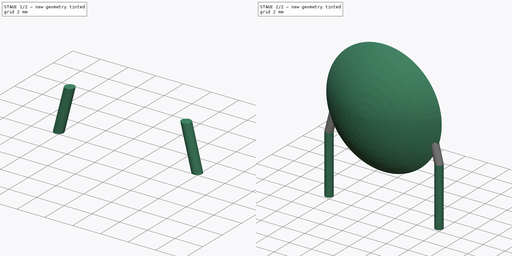
[diagram: build sequence overview — one tinted view per stage of 2, left to right]
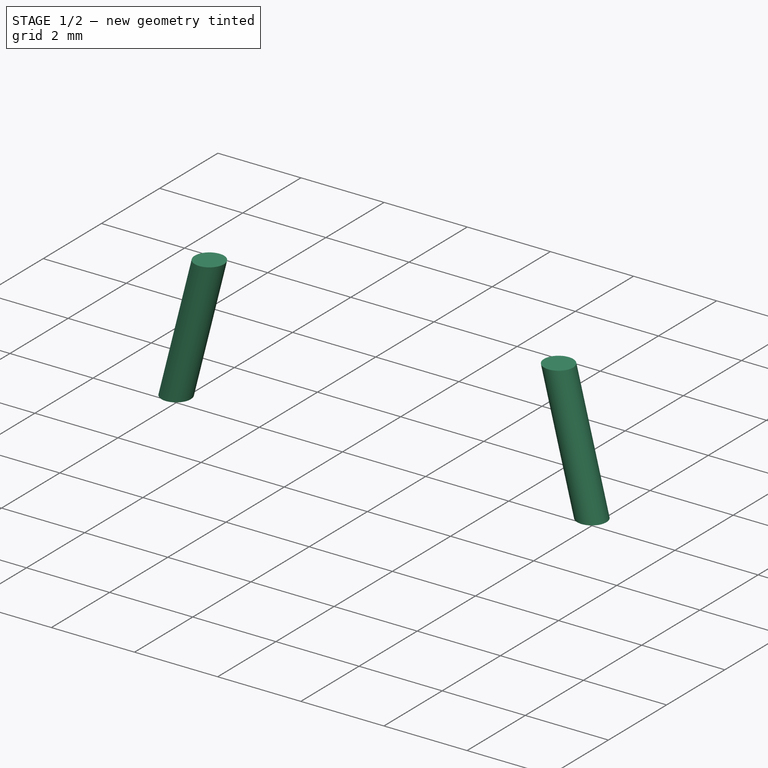
[diagram: stage 1 of 2 — iso view after this stage's code; geometry added in this stage tinted green]
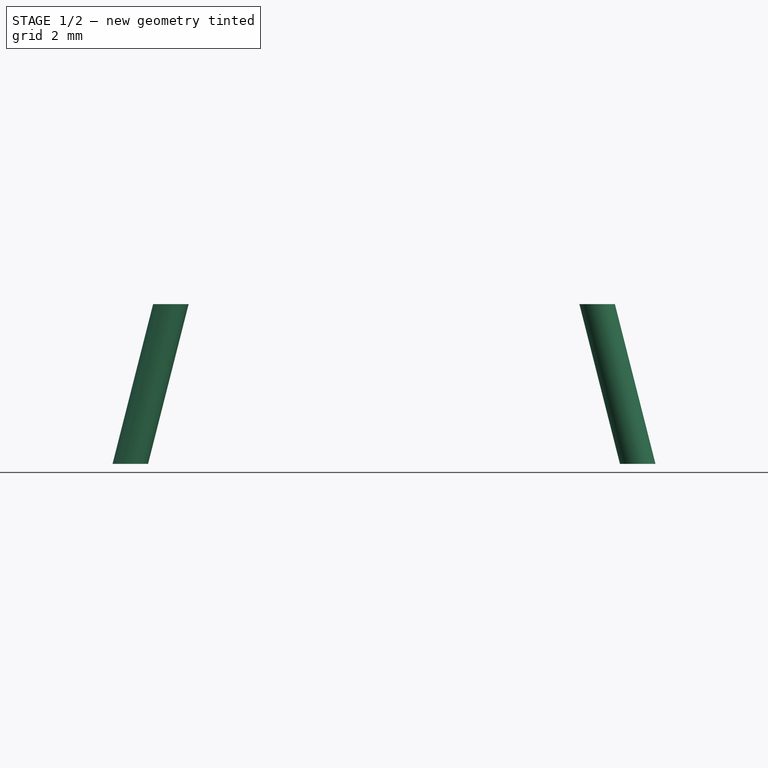
[diagram: stage 1 of 2 — front view after this stage's code; geometry added in this stage tinted green]
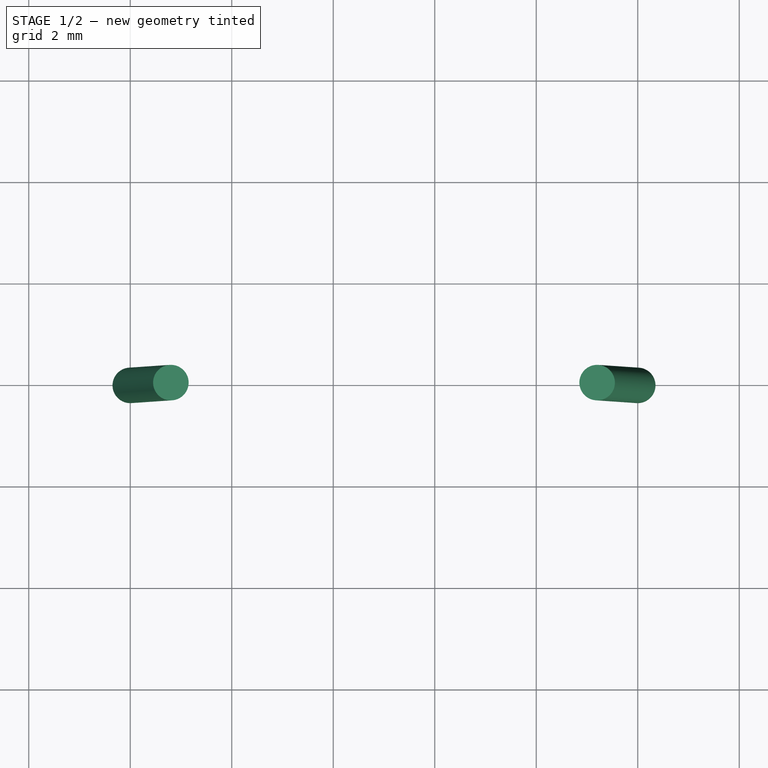
[diagram: stage 1 of 2 — top view after this stage's code; geometry added in this stage tinted green]
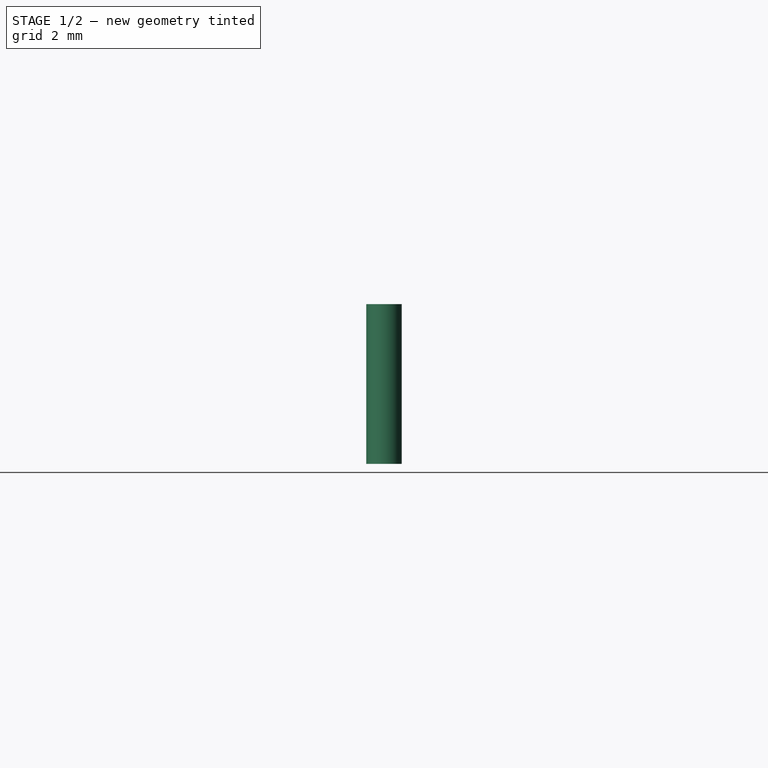
[diagram: stage 1 of 2 — right view after this stage's code; geometry added in this stage tinted green]
FCSTD DOCUMENT  (FreeCAD 0.16R6703 (Git))
Label: C_Disc_D10.5mm_W5.0mm_P10.00mm
License: All rights reserved
LicenseURL: http://en.wikipedia.org/wiki/All_rights_reserved
objects: Sketcher::SketchObject×6, Part::Loft×2, Spreadsheet::Sheet×1, PartDesign::Pad×1, PartDesign::Revolution×1
note: 12 computed .brp shape members not serialized (recipe doc carries the construction recipe); baked Part::Feature solids carry a one-line shape summary decoded from their .brp

FEATURE [Sketcher::SketchObject] Sketch002
  Placement = pos=(0,0,5.25) rot=(0,0,1;0rad)
  expr: Constraints[1] = (Spreadsheet.RMx - Spreadsheet.Wx * 0.8) / 2
  expr: Constraints[2] = Spreadsheet.d_wire / 2
  expr: Placement.Base.z = Spreadsheet.Wx / 2
  sketch-geometry (1):
    g0: Circle CenterX=0.8 CenterY=0 CenterZ=0 NormalX=0 NormalY=0 NormalZ=1 Radius=0.35
  constraints (3):
    c: PointOnObject(g0,g-1)
    c: DistanceX(g-1,g0) = 0.8
    c: Radius(g0) = 0.35
FEATURE [Sketcher::SketchObject] Sketch003
  Placement = pos=(0,0,2.1) rot=(0,0,1;0rad)
  expr: Constraints[2] = Spreadsheet.d_wire / 2
  expr: Placement.Base.z = Spreadsheet.Wx / 5
  sketch-geometry (1):
    g0: Circle CenterX=0 CenterY=0 CenterZ=0 NormalX=0 NormalY=0 NormalZ=1 Radius=0.35
  constraints (3):
    c: PointOnObject(g0,g-1)
    c: DistanceX(g-1,g0) = 0
    c: Radius(g0) = 0.35
FEATURE [Sketcher::SketchObject] Sketch004
  Placement = pos=(0,0,2.1) rot=(0,0,1;0rad)
  expr: Constraints[2] = Spreadsheet.RMx
  expr: Placement.Base.z = Spreadsheet.Wx / 5
  expr: Constraints[1] = Spreadsheet.d_wire / 2
  sketch-geometry (1):
    g0: Circle CenterX=10 CenterY=0 CenterZ=0 NormalX=0 NormalY=0 NormalZ=1 Radius=0.35
  constraints (3):
    c: PointOnObject(g0,g-1)
    c: Radius(g0) = 0.35
    c: DistanceX(g-1,g0) = 10
FEATURE [Sketcher::SketchObject] Sketch005
  Placement = pos=(0,0,5.25) rot=(0,0,1;0rad)
  expr: Constraints[2] = (Spreadsheet.RMx - Spreadsheet.Wx * 0.8) / 2 + Spreadsheet.Wx * 0.8
  expr: Placement.Base.z = Spreadsheet.Wx / 2
  expr: Constraints[1] = Spreadsheet.d_wire / 2
  sketch-geometry (1):
    g0: Circle CenterX=9.2 CenterY=0 CenterZ=0 NormalX=0 NormalY=0 NormalZ=1 Radius=0.35
  constraints (3):
    c: PointOnObject(g0,g-1)
    c: Radius(g0) = 0.35
    c: DistanceX(g-1,g0) = 9.2
FEATURE [Part::Loft] Loft
  Closed = false
  Ruled = false
  Sections = -> [Sketch002,Sketch003]
  Solid = true
FEATURE [Part::Loft] Loft001
  Closed = false
  Ruled = false
  Sections = -> [Sketch004,Sketch005]
  Solid = true
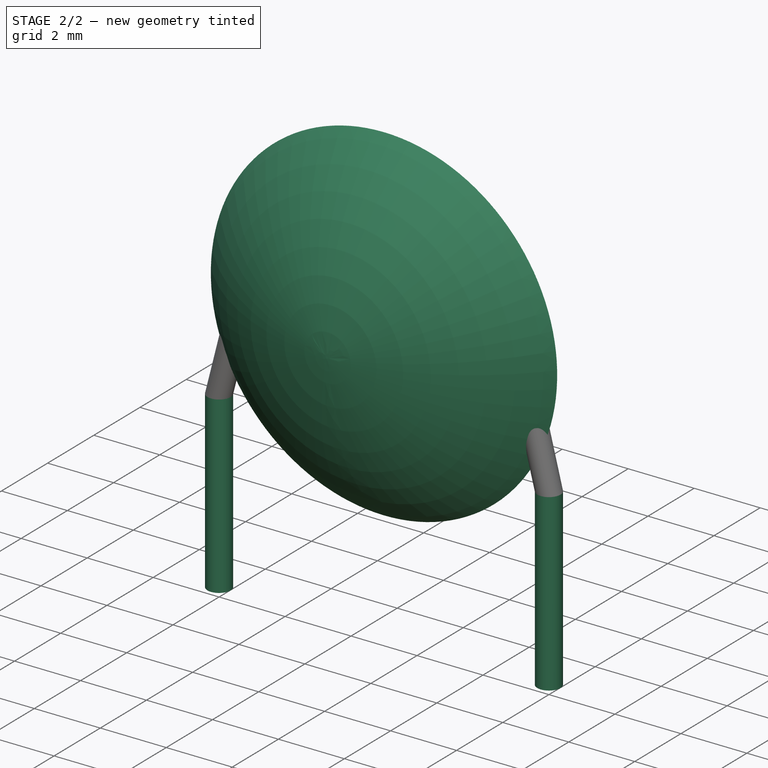
[diagram: stage 2 of 2 — iso view after this stage's code; geometry added in this stage tinted green]
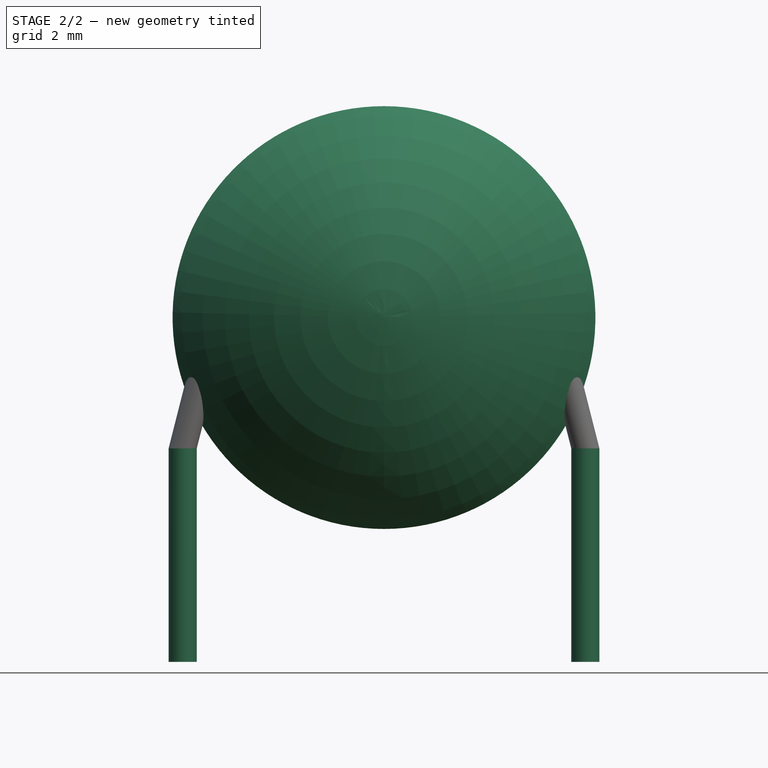
[diagram: stage 2 of 2 — front view after this stage's code; geometry added in this stage tinted green]
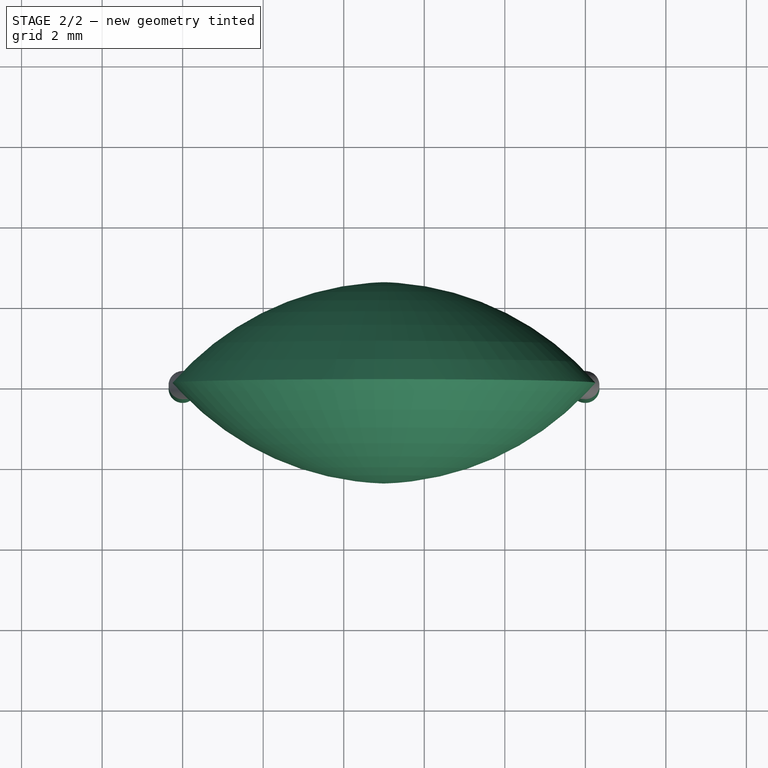
[diagram: stage 2 of 2 — top view after this stage's code; geometry added in this stage tinted green]
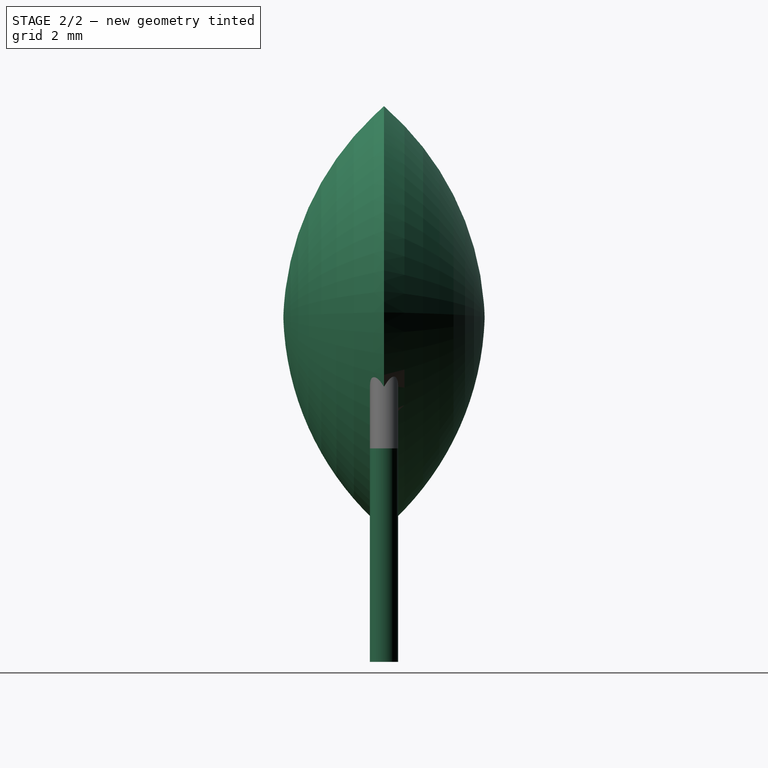
[diagram: stage 2 of 2 — right view after this stage's code; geometry added in this stage tinted green]
FEATURE [Spreadsheet::Sheet] Spreadsheet
  cells = A1=Wx; B1(Wx)=10.5; A2=Wy; B2(Wy)=5; A3=RM; B3(RMx)=10; C3(RMy)=0; A4=d_wire; B4(d_wire)=0.7; A5=H; B5(H)=10; A6=offsetx; B6(offset_x)=0.25
FEATURE [Sketcher::SketchObject] Sketch001
  expr: Constraints[3] = Spreadsheet.d_wire / 2
  expr: Constraints[2] = max(Spreadsheet.RMx; Spreadsheet.RMy)
  sketch-geometry (2):
    g0: Circle CenterX=0 CenterY=0 CenterZ=0 NormalX=0 NormalY=0 NormalZ=1 Radius=0.35
    g1: Circle CenterX=10 CenterY=0 CenterZ=0 NormalX=0 NormalY=0 NormalZ=1 Radius=0.35
  constraints (5):
    c: Coincident(g0,g-1)
    c: PointOnObject(g1,g-1)
    c: DistanceX(g-1,g1) = 10
    c: Radius(g0) = 0.35
    c: Equal(g0,g1)
FEATURE [PartDesign::Pad] Pad001
  Length = 2.1
  Length2 = 3.2
  Reversed = true
  Sketch = -> Sketch001
  Type = 4
  expr: Length = Spreadsheet.Wx / 5
FEATURE [Sketcher::SketchObject] Sketch
  Placement = pos=(5,0,0) rot=(0.57735,0.57735,0.57735;2.0944rad)
  expr: Placement.Base.x = Spreadsheet.RMx / 2
  expr: Constraints[12] = Spreadsheet.Wy
  expr: Constraints[10] = Spreadsheet.Wx / 2
  expr: Constraints[8] = Spreadsheet.Wx * 0.02
  sketch-geometry (4):
    g0: LineSegment StartX=-2.5 StartY=5.35 StartZ=0 EndX=2.5 EndY=5.35 EndZ=0
    g1: ArcOfCircle CenterX=4.7035 CenterY=5.56 CenterZ=0 NormalX=0 NormalY=0 NormalZ=1 Radius=7.20656 StartAngle=3.17074 EndAngle=4.00129
    g2: ArcOfCircle CenterX=-4.7035 CenterY=5.56 CenterZ=0 NormalX=0 NormalY=0 NormalZ=1 Radius=7.20656 StartAngle=5.42349 EndAngle=6.25404
    g3: LineSegment [constr] StartX=-3.32079 StartY=5.35 StartZ=0 EndX=3.24593 EndY=5.35 EndZ=0
  constraints (13):
    c: Horizontal(g0)
    c: Coincident(g1,g0)
    c: Coincident(g2,g0)
    c: Coincident(g2,g1)
    c: DistanceY(g1,g2) = 0
    c: Equal(g2,g1)
    c: PointOnObject(g3,g0)
    c: Horizontal(g3)
    c: DistanceY(g0,g2) = 0.21
    c: PointOnObject(g1,g-2)
    c: DistanceY(g1,g0) = 5.25
    c: DistanceY(g-1,g1) = 0.1
    c: DistanceX(g0,g0) = 5
FEATURE [PartDesign::Revolution] Revolution
  Angle = 360
  Axis = (0,6.56672,0)
  Base = (5,-3.32079,5.35)
  Placement = pos=(5,0,0) rot=(0.57735,0.57735,0.57735;2.0944rad)
  ReferenceAxis = -> Sketch [Axis0]
  Reversed = true
  Sketch = -> Sketch
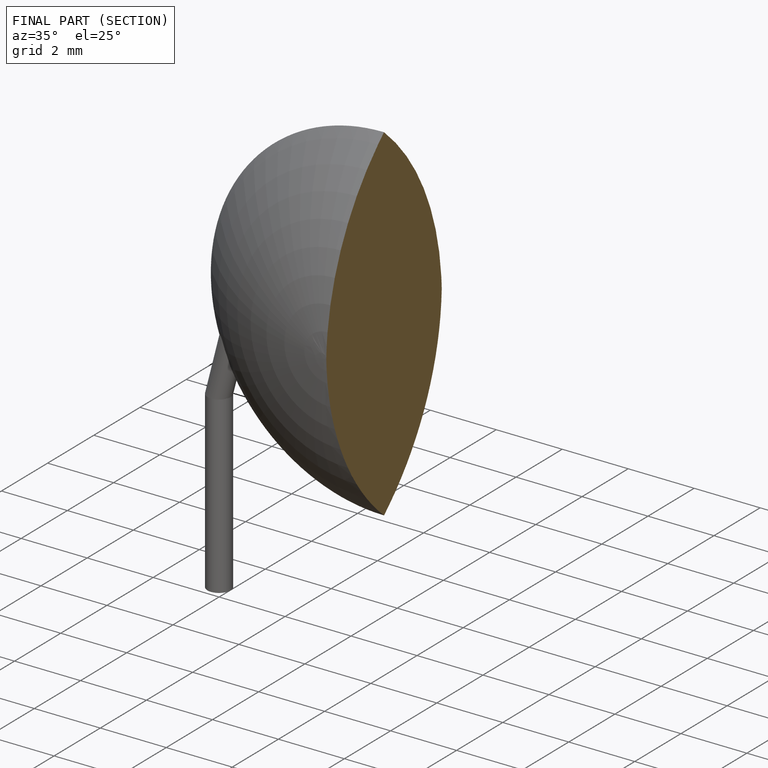
[diagram: finished part — half-section view (interior)]
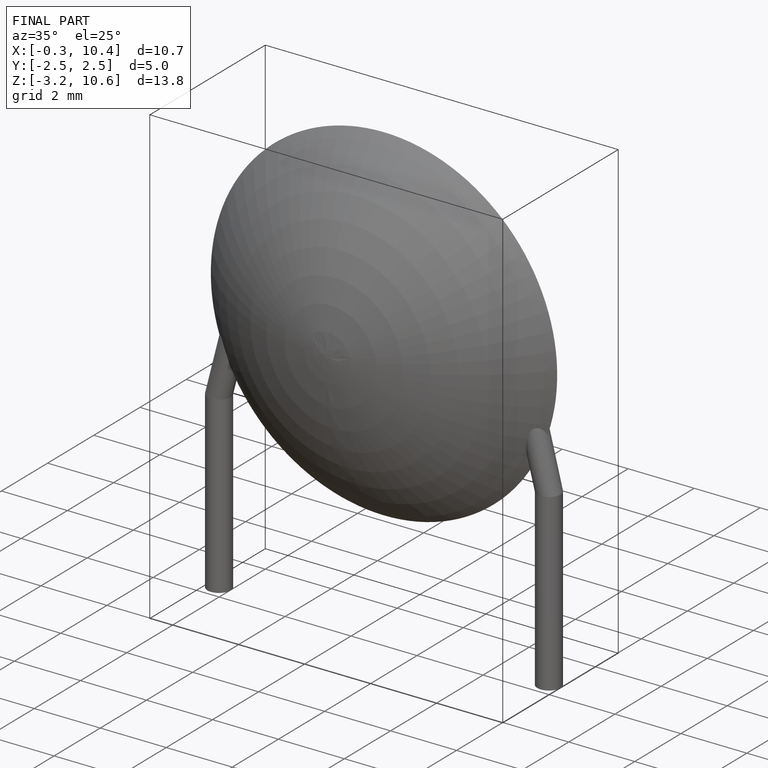
[diagram: finished part — iso view with bounding-box wireframe]
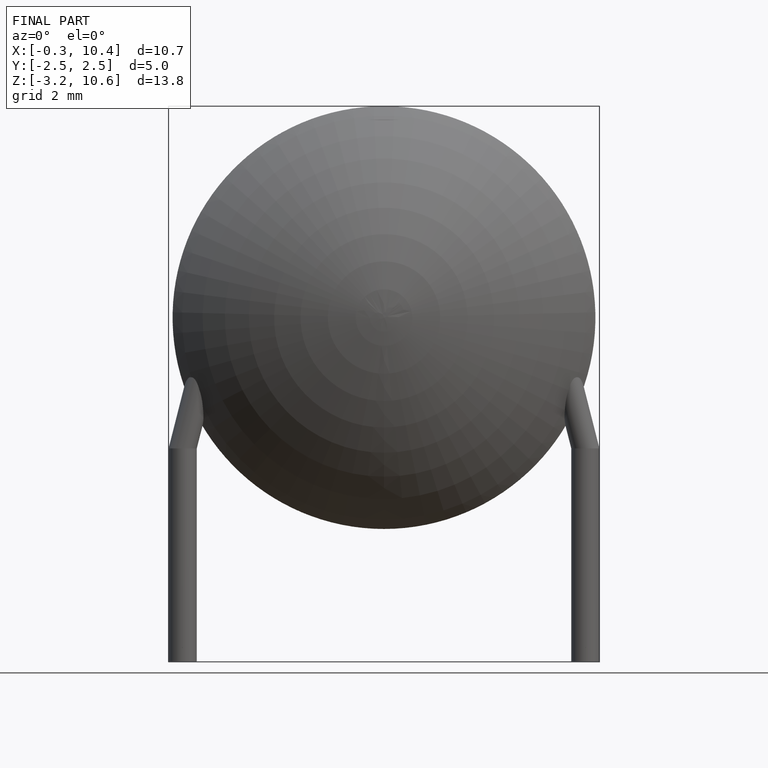
[diagram: finished part — front view with bounding-box wireframe]
